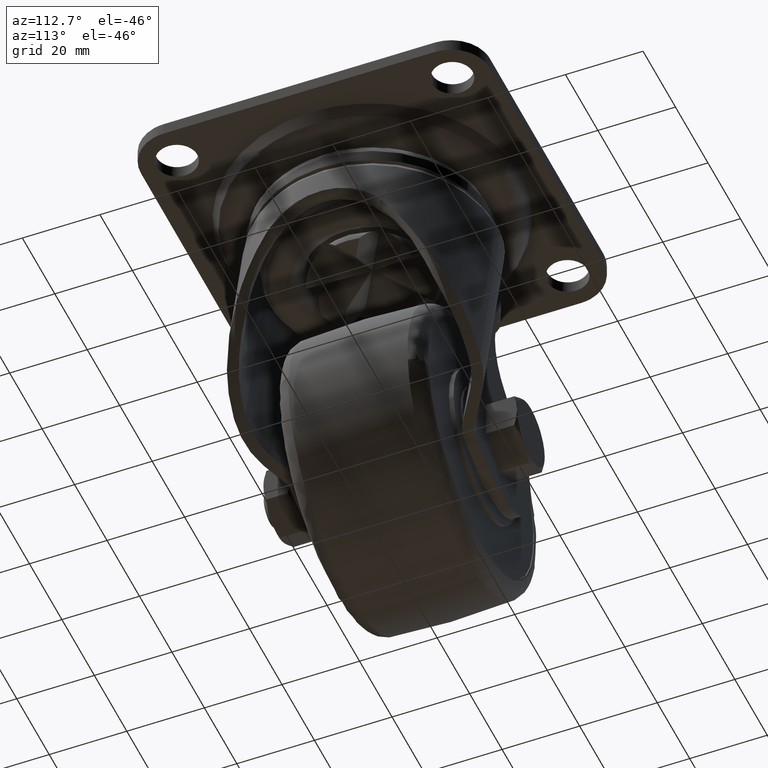
[diagram: clean part render]
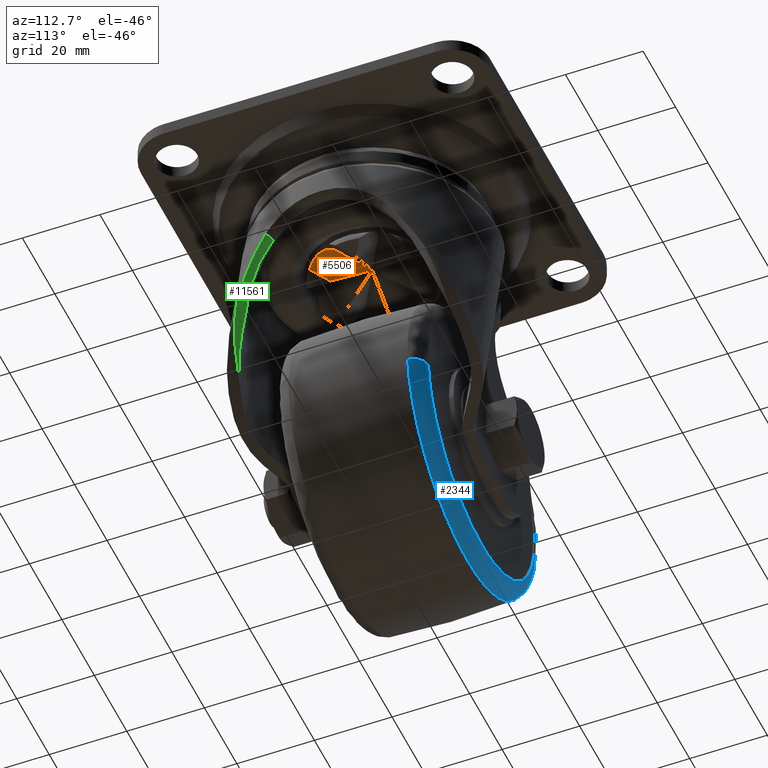
[diagram: same view with three faces highlighted in distinct colors, each labeled with its STEP entity id]
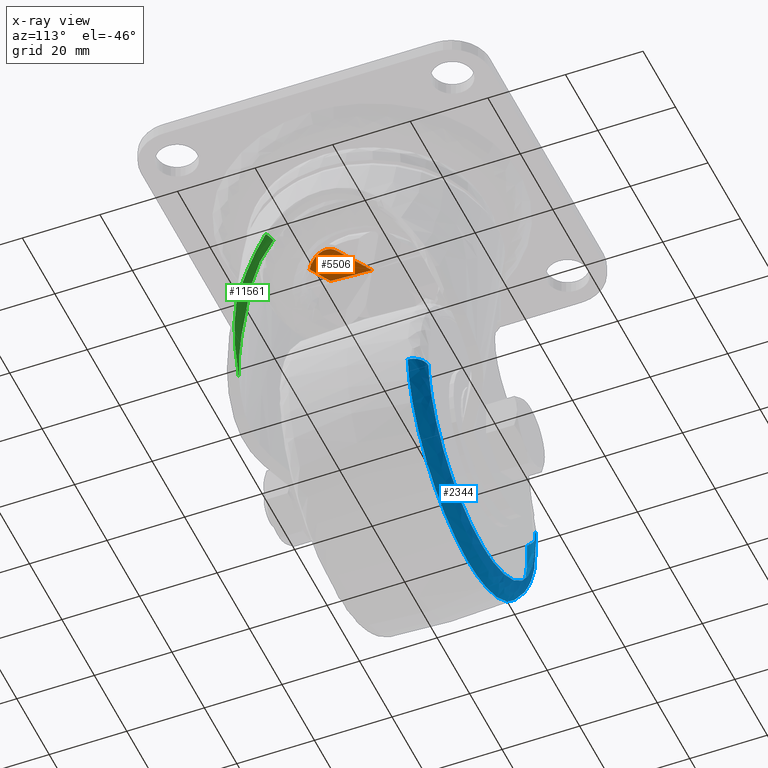
[diagram: x-ray of the same camera — body ghosted, the three highlighted faces saturated]
A machine part, auxiliary view with three faces highlighted in distinct colors.
The next image is the same camera in x-ray (body ghosted, the three faces saturated) — at least one of them is partly hidden behind the body in this view.
Their STEP definitions:

[orange] entity #5506 — the highlighted face is a freeform B-spline surface patch.
#5146=CARTESIAN_POINT('',(10.434329321615319,-11.797765534544180,-26.0));
#5147=VERTEX_POINT('',#5146);
#5148=CARTESIAN_POINT('',(4.999999999999890,-8.660254037844370,-26.0));
#5149=VERTEX_POINT('',#5148);
#5150=CARTESIAN_POINT('',(10.434329321615319,-11.797765534544180,-26.0));
#5151=CARTESIAN_POINT('',(4.999999999999890,-8.660254037844370,-26.0));
#5152=QUASI_UNIFORM_CURVE('',1,(#5150,#5151),.UNSPECIFIED.,.F.,.U.);
#5153=EDGE_CURVE('',#5147,#5149,#5152,.T.);
#5305=CARTESIAN_POINT('',(-2.881881E-013,-1.665335E-013,-21.0));
#5306=VERTEX_POINT('',#5305);
#5443=CARTESIAN_POINT('',(-0.582259353285898,0.604407941459812,-20.767697045089509));
#5444=CARTESIAN_POINT('',(-0.582259353285898,-9.532203138324929,-29.546259748465911));
#5445=CARTESIAN_POINT('',(12.239104027934181,-2.568056744051085,-17.104450364740920));
#5446=CARTESIAN_POINT('',(12.239104027934181,-12.704667823835830,-25.883013068117322));
#5447=B_SPLINE_SURFACE_WITH_KNOTS('',1,1,((#5443,#5445),(#5444,#5446)),.UNSPECIFIED.,.F.,.F.,.U.,(2,2),(2,2),(0.0,13.409476027046169),(0.0,13.706614001101441),.UNSPECIFIED.);
#5448=CARTESIAN_POINT('',(9.309773090682702,-5.375000000000000,-21.0));
#5449=VERTEX_POINT('',#5448);
#5450=CARTESIAN_POINT('',(9.309773090682702,-5.375000000000000,-21.0));
#5451=CARTESIAN_POINT('',(9.478319791243086,-5.472310482939736,-21.000000000000011));
#5452=CARTESIAN_POINT('',(9.640919957240936,-5.579259362001912,-21.011320363175258));
#5453=CARTESIAN_POINT('',(9.875794397473928,-5.754312095303161,-21.045483257099541));
#5454=CARTESIAN_POINT('',(9.952697596935483,-5.815245130296026,-21.059801213602260));
#5455=CARTESIAN_POINT('',(10.100776205457860,-5.939761732716232,-21.093596450229910));
#5456=CARTESIAN_POINT('',(10.172308353972850,-6.003594883921207,-21.113111506519520));
#5457=CARTESIAN_POINT('',(10.379704814886050,-6.199616950771348,-21.179173365657480));
#5458=CARTESIAN_POINT('',(10.508401778468190,-6.336307979722947,-21.233202787407951));
#5459=CARTESIAN_POINT('',(10.687722945730330,-6.549965319583010,-21.328574887800709));
#5460=CARTESIAN_POINT('',(10.745330110155001,-6.622825482990985,-21.362870058023489));
#5461=CARTESIAN_POINT('',(10.854509702963650,-6.769377195007980,-21.435197767193969));
#5462=CARTESIAN_POINT('',(10.906269688965841,-6.843270779231575,-21.473311495307200));
#5463=CARTESIAN_POINT('',(11.053490038412180,-7.066710889210013,-21.593206132049751));
#5464=CARTESIAN_POINT('',(11.140925489293860,-7.218009198373970,-21.680516585894619));
#5465=CARTESIAN_POINT('',(11.256978804930920,-7.448252858212232,-21.821886786556330));
#5466=CARTESIAN_POINT('',(11.293199309882469,-7.525697441412470,-21.870845510517359));
#5467=CARTESIAN_POINT('',(11.360370989448370,-7.681025335041265,-21.971777572533291));
#5468=CARTESIAN_POINT('',(11.391173042241350,-7.758536396086955,-22.023503094076741));
#5469=CARTESIAN_POINT('',(11.475659817098389,-7.990634646148619,-22.182262687375530));
#5470=CARTESIAN_POINT('',(11.521455099309261,-8.144788546597406,-22.292866240151071));
#5471=CARTESIAN_POINT('',(11.593407340490259,-8.452017809461998,-22.522958465987259));
#5472=CARTESIAN_POINT('',(11.619574148803681,-8.605263516667804,-22.642589737291772));
#5473=CARTESIAN_POINT('',(11.669292960256209,-9.062369612620232,-23.013595822885041));
#5474=CARTESIAN_POINT('',(11.663681075423510,-9.355828062019759,-23.270544237436521));
#5475=CARTESIAN_POINT('',(11.613915729681819,-9.710210245945063,-23.602330884235290));
#5476=CARTESIAN_POINT('',(11.601798236913099,-9.780456810885125,-23.669224940386421));
#5477=CARTESIAN_POINT('',(11.573280261949600,-9.919703542220091,-23.804075134598190));
#5478=CARTESIAN_POINT('',(11.556848778876910,-9.988814918433025,-23.872143083625449));
#5479=CARTESIAN_POINT('',(11.501365354309090,-10.193513493138621,-24.077158961722869));
#5480=CARTESIAN_POINT('',(11.456390517169140,-10.325680253792040,-24.214106152554610));
#5481=CARTESIAN_POINT('',(11.299022708191840,-10.710098879774080,-24.625706352831621));
#5482=CARTESIAN_POINT('',(11.164349102283101,-10.950356653987610,-24.901112491711590));
#5483=CARTESIAN_POINT('',(10.960705889557110,-11.231675558295640,-25.246563415770161));
#5484=CARTESIAN_POINT('',(10.918135811443760,-11.287056871665291,-25.315810079099819));
#5485=CARTESIAN_POINT('',(10.829776156583581,-11.395491790018109,-25.453897300480740));
#5486=CARTESIAN_POINT('',(10.784013348437529,-11.448523529734411,-25.522705538354959));
#5487=CARTESIAN_POINT('',(10.642066008637769,-11.604129024370909,-25.728437519578499));
#5488=CARTESIAN_POINT('',(10.541230278697959,-11.703218835194329,-25.864669677977730));
#5489=CARTESIAN_POINT('',(10.434329321615399,-11.797765534544251,-26.0));
#5490=B_SPLINE_CURVE_WITH_KNOTS('',3,(#5450,#5451,#5452,#5453,#5454,#5455,#5456,#5457,#5458,#5459,#5460,#5461,#5462,#5463,#5464,#5465,#5466,#5467,#5468,#5469,#5470,#5471,#5472,#5473,#5474,#5475,#5476,#5477,#5478,#5479,#5480,#5481,#5482,#5483,#5484,#5485,#5486,#5487,#5488,#5489),.UNSPECIFIED.,.F.,.U.,(4,2,2,2,2,2,2,2,2,2,2,2,2,2,2,2,2,2,2,4),(0.0,0.062499999999999,0.093749999999998,0.124999999999998,0.187499999999997,0.218749999999997,0.249999999999997,0.312499999999996,0.343749999999996,0.374999999999996,0.437499999999996,0.499999999999996,0.624999999999996,0.656249999999996,0.687499999999996,0.749999999999996,0.874999999999997,0.906249999999998,0.937499999999999,1.0),.UNSPECIFIED.);
#5491=EDGE_CURVE('',#5449,#5147,#5490,.T.);
#5492=ORIENTED_EDGE('',*,*,#5491,.T.);
#5493=ORIENTED_EDGE('',*,*,#5153,.T.);
#5494=CARTESIAN_POINT('',(-2.881881E-013,-1.665335E-013,-21.0));
#5495=CARTESIAN_POINT('',(4.999999999999890,-8.660254037844370,-26.0));
#5496=QUASI_UNIFORM_CURVE('',1,(#5494,#5495),.UNSPECIFIED.,.F.,.U.);
#5497=EDGE_CURVE('',#5306,#5149,#5496,.T.);
#5498=ORIENTED_EDGE('',*,*,#5497,.F.);
#5499=CARTESIAN_POINT('',(-2.881881E-013,-1.665335E-013,-21.0));
#5500=CARTESIAN_POINT('',(9.309773090682702,-5.375000000000000,-21.0));
#5501=QUASI_UNIFORM_CURVE('',1,(#5499,#5500),.UNSPECIFIED.,.F.,.U.);
#5502=EDGE_CURVE('',#5306,#5449,#5501,.T.);
#5503=ORIENTED_EDGE('',*,*,#5502,.T.);
#5504=EDGE_LOOP('',(#5492,#5493,#5498,#5503));
#5505=FACE_OUTER_BOUND('',#5504,.T.);
#5506=ADVANCED_FACE('',(#5505),#5447,.F.);

[blue] entity #2344 — the highlighted face is a freeform B-spline surface patch.
#2054=CARTESIAN_POINT('',(-22.0,15.306126688645850,-105.413446100786100));
#2055=VERTEX_POINT('',#2054);
#2069=CARTESIAN_POINT('',(14.770724452030590,15.306126676629290,-71.742890423072211));
#2070=VERTEX_POINT('',#2069);
#2071=CARTESIAN_POINT('',(-22.0,15.306126688645850,-105.413446100786100));
#2072=CARTESIAN_POINT('',(11.801244706569882,15.306126682647827,-105.413446093734580));
#2073=CARTESIAN_POINT('',(14.770724452030590,15.306126676629290,-71.742890423072211));
#2081=(BOUNDED_CURVE()B_SPLINE_CURVE(2,(#2071,#2072,#2073),.UNSPECIFIED.,.F.,.U.)B_SPLINE_CURVE_WITH_KNOTS((3,3),(0.0,0.234718454724046),.UNSPECIFIED.)CURVE()GEOMETRIC_REPRESENTATION_ITEM()RATIONAL_B_SPLINE_CURVE((1.0,0.725010225123819,0.966381850438441))REPRESENTATION_ITEM(''));
#2082=EDGE_CURVE('',#2055,#2070,#2081,.T.);
#2152=CARTESIAN_POINT('',(-58.770724452030890,15.306126676625340,-65.257109576927775));
#2153=VERTEX_POINT('',#2152);
#2167=CARTESIAN_POINT('',(-58.770724452030898,15.306126676625340,-65.257109576927775));
#2168=CARTESIAN_POINT('',(-58.913446269514765,15.306126676868050,-66.875414153216440));
#2169=CARTESIAN_POINT('',(-58.913446273033692,15.306126677133021,-68.500000013506764));
#2170=CARTESIAN_POINT('',(-58.913446352989894,15.306126683153529,-105.413446107243080));
#2171=CARTESIAN_POINT('',(-22.0,15.306126688645850,-105.413446100786100));
#2179=(BOUNDED_CURVE()B_SPLINE_CURVE(2,(#2167,#2168,#2169,#2170,#2171),.UNSPECIFIED.,.F.,.U.)B_SPLINE_CURVE_WITH_KNOTS((3,2,3),(0.734718454724062,0.750000000000000,1.0),.UNSPECIFIED.)CURVE()GEOMETRIC_REPRESENTATION_ITEM()RATIONAL_B_SPLINE_CURVE((0.966381850438474,0.982096556062748,1.0,0.707106781186548,1.0))REPRESENTATION_ITEM(''));
#2180=EDGE_CURVE('',#2153,#2055,#2179,.T.);
#2215=CARTESIAN_POINT('',(10.797875894423200,19.0,-71.392516240046859));
#2216=VERTEX_POINT('',#2215);
#2217=CARTESIAN_POINT('',(10.797875894423200,19.000000000000004,-71.392516240046859));
#2218=CARTESIAN_POINT('',(14.488290778601838,19.000000004315627,-71.717981981149720));
#2219=CARTESIAN_POINT('',(14.770724452030590,15.306126676629290,-71.742890423072211));
#2227=(BOUNDED_CURVE()B_SPLINE_CURVE(2,(#2217,#2218,#2219),.UNSPECIFIED.,.F.,.U.)B_SPLINE_CURVE_WITH_KNOTS((3,3),(-1.724331687502174,-0.276955220916635),.UNSPECIFIED.)CURVE()GEOMETRIC_REPRESENTATION_ITEM()RATIONAL_B_SPLINE_CURVE((0.892190726428418,0.654415034231074,0.891768274193680))REPRESENTATION_ITEM(''));
#2228=EDGE_CURVE('',#2216,#2070,#2227,.T.);
#2247=CARTESIAN_POINT('',(-54.797875894423200,19.0,-65.607483759953126));
#2248=VERTEX_POINT('',#2247);
#2262=CARTESIAN_POINT('',(-54.797875894423200,19.0,-65.607483759953126));
#2263=CARTESIAN_POINT('',(-58.488290778605503,19.000000004315623,-65.282018018849982));
#2264=CARTESIAN_POINT('',(-58.770724452030883,15.306126676625347,-65.257109576927775));
#2272=(BOUNDED_CURVE()B_SPLINE_CURVE(2,(#2262,#2263,#2264),.UNSPECIFIED.,.F.,.U.)B_SPLINE_CURVE_WITH_KNOTS((3,3),(-1.724331687502173,-0.276955220915580),.UNSPECIFIED.)CURVE()GEOMETRIC_REPRESENTATION_ITEM()RATIONAL_B_SPLINE_CURVE((0.892190726428418,0.654415034230901,0.891768274194026))REPRESENTATION_ITEM(''));
#2273=EDGE_CURVE('',#2248,#2153,#2272,.T.);
#2279=CARTESIAN_POINT('',(-54.451100699340820,18.991038623498962,-64.721523629275325));
#2280=CARTESIAN_POINT('',(-54.490971182983998,18.991038623498955,-65.173610001790664));
#2281=CARTESIAN_POINT('',(-57.400315882779374,18.991038623498955,-98.162301674018209));
#2282=CARTESIAN_POINT('',(-24.869007104380575,18.991038623498955,-101.031308778398800));
#2283=CARTESIAN_POINT('',(7.662301674018212,18.991038623498955,-103.900315882779350));
#2284=CARTESIAN_POINT('',(10.571646373809592,18.991038623498955,-70.911624210597196));
#2285=CARTESIAN_POINT('',(10.611516857448855,18.991038623498959,-70.459537838126181));
#2286=CARTESIAN_POINT('',(-58.651029416809237,19.274438382241804,-64.232500727873258));
#2287=CARTESIAN_POINT('',(-58.696060070234751,19.274438382241808,-64.743097613061011));
#2288=CARTESIAN_POINT('',(-61.981941777723485,19.274438382241811,-102.001294803439290));
#2289=CARTESIAN_POINT('',(-25.240323487142099,19.274438382241808,-105.241618290581400));
#2290=CARTESIAN_POINT('',(11.501294803439288,19.274438382241811,-108.481941777723490));
#2291=CARTESIAN_POINT('',(14.787176510923480,19.274438382241811,-71.223744587396453));
#2292=CARTESIAN_POINT('',(14.832207164344581,19.274438382241811,-70.713147702258752));
#2293=CARTESIAN_POINT('',(-58.691536835348835,15.038492718044775,-64.227784206076080));
#2294=CARTESIAN_POINT('',(-58.736617257513558,15.038492718044774,-64.738945412704794));
#2295=CARTESIAN_POINT('',(-62.026130584296865,15.038492718044772,-102.038321075056030));
#2296=CARTESIAN_POINT('',(-25.243904754620409,15.038492718044782,-105.282225829676460));
#2297=CARTESIAN_POINT('',(11.538321075056039,15.038492718044772,-108.526130584296840));
#2298=CARTESIAN_POINT('',(14.827834401834840,15.038492718044782,-71.226754921996957));
#2299=CARTESIAN_POINT('',(14.872914823995142,15.038492718044782,-70.715593715418336));
#2307=(BOUNDED_SURFACE()B_SPLINE_SURFACE(2,2,((#2279,#2286,#2293),(#2280,#2287,#2294),(#2281,#2288,#2295),(#2282,#2289,#2296),(#2283,#2290,#2297),(#2284,#2291,#2298),(#2285,#2292,#2299)),.UNSPECIFIED.,.F.,.F.,.U.)B_SPLINE_SURFACE_WITH_KNOTS((3,1,2,1,3),(3,3),(0.0,1.223586607578449,62.402916982856098,123.582247358133800,124.805833965590100),(0.0,6.899142439934799),.UNSPECIFIED.)GEOMETRIC_REPRESENTATION_ITEM()RATIONAL_B_SPLINE_SURFACE(((0.927874830766947,0.636871900471230,0.927404715225941),(0.922502407701222,0.633184393089253,0.922035014143282),(0.648508831365275,0.445121516619428,0.648180258943656),(0.917129984635498,0.629496885707276,0.916665313060623),(0.648508831365275,0.445121516619428,0.648180258943656),(0.922502407700686,0.633184393088885,0.922035014142746),(0.927874830765875,0.636871900470494,0.927404715224870)))REPRESENTATION_ITEM('')SURFACE());
#2308=ORIENTED_EDGE('',*,*,#2082,.F.);
#2309=ORIENTED_EDGE('',*,*,#2180,.F.);
#2310=ORIENTED_EDGE('',*,*,#2273,.F.);
#2311=CARTESIAN_POINT('',(-22.0,19.0,-101.425177497680810));
#2312=VERTEX_POINT('',#2311);
#2313=CARTESIAN_POINT('',(-54.797875894423200,18.999999999999996,-65.607483759953112));
#2314=CARTESIAN_POINT('',(-54.925177499624546,19.000000000000007,-67.050940564817239));
#2315=CARTESIAN_POINT('',(-54.925177499580890,19.0,-68.499999999832411));
#2316=CARTESIAN_POINT('',(-54.925177498589022,19.000000000000011,-101.425177497600700));
#2317=CARTESIAN_POINT('',(-22.0,19.0,-101.425177497680810));
#2325=(BOUNDED_CURVE()B_SPLINE_CURVE(2,(#2313,#2314,#2315,#2316,#2317),.UNSPECIFIED.,.F.,.U.)B_SPLINE_CURVE_WITH_KNOTS((3,2,3),(0.734718454855756,0.750000000000000,1.0),.UNSPECIFIED.)CURVE()GEOMETRIC_REPRESENTATION_ITEM()RATIONAL_B_SPLINE_CURVE((0.966381850709328,0.982096556217037,1.0,0.707106781186547,1.0))REPRESENTATION_ITEM(''));
#2326=EDGE_CURVE('',#2248,#2312,#2325,.T.);
#2327=ORIENTED_EDGE('',*,*,#2326,.T.);
#2328=CARTESIAN_POINT('',(-22.0,19.0,-101.425177497680810));
#2329=CARTESIAN_POINT('',(8.149229965881830,19.000000000000004,-101.425177497768290));
#2330=CARTESIAN_POINT('',(10.797875894423202,18.999999999999996,-71.392516240046859));
#2338=(BOUNDED_CURVE()B_SPLINE_CURVE(2,(#2328,#2329,#2330),.UNSPECIFIED.,.F.,.U.)B_SPLINE_CURVE_WITH_KNOTS((3,3),(0.0,0.234718454855756),.UNSPECIFIED.)CURVE()GEOMETRIC_REPRESENTATION_ITEM()RATIONAL_B_SPLINE_CURVE((1.0,0.725010224969510,0.966381850709328))REPRESENTATION_ITEM(''));
#2339=EDGE_CURVE('',#2312,#2216,#2338,.T.);
#2340=ORIENTED_EDGE('',*,*,#2339,.T.);
#2341=ORIENTED_EDGE('',*,*,#2228,.T.);
#2342=EDGE_LOOP('',(#2308,#2309,#2310,#2327,#2340,#2341));
#2343=FACE_OUTER_BOUND('',#2342,.T.);
#2344=ADVANCED_FACE('',(#2343),#2307,.T.);

[green] entity #11561 — the highlighted face is a freeform B-spline surface patch.
#9084=CARTESIAN_POINT('',(25.820157492246601,-24.150369751836251,-46.517935497094498));
#9085=VERTEX_POINT('',#9084);
#9115=CARTESIAN_POINT('',(30.167933977785751,-14.834970115155000,-31.474647562725099));
#9116=VERTEX_POINT('',#9115);
#9117=CARTESIAN_POINT('',(25.820157492246601,-24.150369751836251,-46.517935497094498));
#9118=CARTESIAN_POINT('',(26.087712350857199,-23.816589479148021,-45.885639921895063));
#9119=CARTESIAN_POINT('',(26.337378873548719,-23.479388839233359,-45.248439191217543));
#9120=CARTESIAN_POINT('',(26.691166144333469,-22.966379616914640,-44.288693866305671));
#9121=CARTESIAN_POINT('',(26.805624856894330,-22.794172220381800,-43.968116075576887));
#9122=CARTESIAN_POINT('',(27.028432867896601,-22.446965801641561,-43.326152647935359));
#9123=CARTESIAN_POINT('',(27.136807470314078,-22.271920665725851,-43.004684822808663));
#9124=CARTESIAN_POINT('',(27.453450775125820,-21.742683920383321,-42.041057138449773));
#9125=CARTESIAN_POINT('',(27.653420226428992,-21.384203349017159,-41.399341707303194));
#9126=CARTESIAN_POINT('',(28.035927996385361,-20.652679287693839,-40.120681710870969));
#9127=CARTESIAN_POINT('',(28.218464107978249,-20.279625233919528,-39.483743361629600));
#9128=CARTESIAN_POINT('',(28.569206702182608,-19.515889867506960,-38.217428431170937));
#9129=CARTESIAN_POINT('',(28.737412050934900,-19.125196464017851,-37.588059332077179));
#9130=CARTESIAN_POINT('',(29.060931782954480,-18.323658462004740,-36.338887045415312));
#9131=CARTESIAN_POINT('',(29.216250207763839,-17.912792936774849,-35.719098392789363));
#9132=CARTESIAN_POINT('',(29.513753204903679,-17.069380716269759,-34.490007543831553));
#9133=CARTESIAN_POINT('',(29.655965013194741,-16.636773065045809,-33.880751767489322));
#9134=CARTESIAN_POINT('',(29.857709265856091,-15.971992448228839,-32.974025965667032));
#9135=CARTESIAN_POINT('',(29.923011317252481,-15.747773085070611,-32.672960239739773));
#9136=CARTESIAN_POINT('',(30.049103492490989,-15.294622855789090,-32.072669942214972));
#9137=CARTESIAN_POINT('',(30.109902496646900,-15.065675638561091,-31.773458235422620));
#9138=CARTESIAN_POINT('',(30.167934022560900,-14.834970054231000,-31.474647611026199));
#9139=B_SPLINE_CURVE_WITH_KNOTS('',3,(#9117,#9118,#9119,#9120,#9121,#9122,#9123,#9124,#9125,#9126,#9127,#9128,#9129,#9130,#9131,#9132,#9133,#9134,#9135,#9136,#9137,#9138),.UNSPECIFIED.,.F.,.U.,(4,2,2,2,2,2,2,2,2,2,4),(0.0,0.124999999999999,0.187499999999999,0.249999999999998,0.374999999999999,0.499999999999999,0.625000000000000,0.750000000000000,0.875000000000000,0.937500000000000,1.0),.UNSPECIFIED.);
#9140=EDGE_CURVE('',#9085,#9116,#9139,.T.);
#9628=CARTESIAN_POINT('',(16.365325057381249,-27.521977061377449,-62.353091716818113));
#9629=VERTEX_POINT('',#9628);
#9645=CARTESIAN_POINT('',(16.365325057381199,-27.521977061377449,-62.353091716818113));
#9646=CARTESIAN_POINT('',(17.352214629291030,-27.414364036552062,-61.123253471997032));
#9647=CARTESIAN_POINT('',(18.288114332023540,-27.271870828188231,-59.868167208264332));
#9648=CARTESIAN_POINT('',(20.060661035410021,-26.906060820953059,-57.311313252929779));
#9649=CARTESIAN_POINT('',(20.897302396676061,-26.682789449767949,-56.009533374805841));
#9650=CARTESIAN_POINT('',(22.472842425328409,-26.141650696413780,-53.362861887478253));
#9651=CARTESIAN_POINT('',(23.211737058369689,-25.823858281181248,-52.017953465390391));
#9652=CARTESIAN_POINT('',(24.074547730163459,-25.356071128000139,-50.312226755285799));
#9653=CARTESIAN_POINT('',(24.244067048889089,-25.258971767654021,-49.969853113635132));
#9654=CARTESIAN_POINT('',(24.577017697664971,-25.057335788692829,-49.282715116702271));
#9655=CARTESIAN_POINT('',(24.740559102548879,-24.952719256028828,-48.937706010163112));
#9656=CARTESIAN_POINT('',(25.220699851691052,-24.628075358338570,-47.902136942762837));
#9657=CARTESIAN_POINT('',(25.527128171957049,-24.397112172601439,-47.210433265907007));
#9658=CARTESIAN_POINT('',(25.820157492246601,-24.150369751836251,-46.517935497094498));
#9659=B_SPLINE_CURVE_WITH_KNOTS('',3,(#9645,#9646,#9647,#9648,#9649,#9650,#9651,#9652,#9653,#9654,#9655,#9656,#9657,#9658),.UNSPECIFIED.,.F.,.U.,(4,2,2,2,2,2,4),(0.0,0.250000000000000,0.499999999999999,0.749999999999999,0.812499999999999,0.874999999999999,1.0),.UNSPECIFIED.);
#9660=EDGE_CURVE('',#9629,#9085,#9659,.T.);
#10578=CARTESIAN_POINT('',(28.263598349204049,-13.670952122306820,-32.333734096313798));
#10579=VERTEX_POINT('',#10578);
#10611=CARTESIAN_POINT('',(22.929484430869401,-23.044724296834001,-48.689486573704087));
#10612=VERTEX_POINT('',#10611);
#10613=CARTESIAN_POINT('',(28.263598349203999,-13.670952122306820,-32.333734096313798));
#10614=CARTESIAN_POINT('',(28.212213010255709,-13.965065783735501,-32.626002955903587));
#10615=CARTESIAN_POINT('',(28.157420502239098,-14.252456089291989,-32.924752966486011));
#10616=CARTESIAN_POINT('',(28.041449636390919,-14.810865713826040,-33.530159311878592));
#10617=CARTESIAN_POINT('',(27.980202146200739,-15.082326543547151,-33.837233733752342));
#10618=CARTESIAN_POINT('',(27.786284893422749,-15.875139413459561,-34.770340193743429));
#10619=CARTESIAN_POINT('',(27.643439455254189,-16.374986778478199,-35.408211185580562));
#10620=CARTESIAN_POINT('',(27.328583191227171,-17.324203025315260,-36.710326102682423));
#10621=CARTESIAN_POINT('',(27.156574202794189,-17.773547320755700,-37.374587178819660));
#10622=CARTESIAN_POINT('',(26.781370501691441,-18.626800544506381,-38.725523248191962));
#10623=CARTESIAN_POINT('',(26.578177493366361,-19.030694691905090,-39.412208713187482));
#10624=CARTESIAN_POINT('',(26.138539046489068,-19.796870793983022,-40.804848634088827));
#10625=CARTESIAN_POINT('',(25.902095280070220,-20.159143379374800,-41.510809886628543));
#10626=CARTESIAN_POINT('',(25.520867814856508,-20.673556274625440,-42.582268613005439));
#10627=CARTESIAN_POINT('',(25.389804009084209,-20.839587454329330,-42.940265832154417));
#10628=CARTESIAN_POINT('',(25.119911461618880,-21.160953262349150,-43.656817679925346));
#10629=CARTESIAN_POINT('',(24.981033257619501,-21.316354502262151,-44.015511770192063));
#10630=CARTESIAN_POINT('',(24.266739874618331,-22.068273094377009,-45.810452310173289));
#10631=CARTESIAN_POINT('',(23.631670068831500,-22.589961052238149,-47.250960939587067));
#10632=CARTESIAN_POINT('',(22.929484430869401,-23.044724296834051,-48.689486573704087));
#10633=B_SPLINE_CURVE_WITH_KNOTS('',3,(#10613,#10614,#10615,#10616,#10617,#10618,#10619,#10620,#10621,#10622,#10623,#10624,#10625,#10626,#10627,#10628,#10629,#10630,#10631,#10632),.UNSPECIFIED.,.F.,.U.,(4,2,2,2,2,2,2,2,2,4),(0.0,0.062500000000000,0.125000000000000,0.250000000000000,0.375000000000001,0.500000000000001,0.625000000000002,0.687500000000001,0.750000000000001,1.0),.UNSPECIFIED.);
#10634=EDGE_CURVE('',#10579,#10612,#10633,.T.);
#11396=CARTESIAN_POINT('',(30.167933977785740,-14.834970115154981,-31.474647562725082));
#11397=CARTESIAN_POINT('',(29.745494031858005,-13.792452722929060,-32.454472525392923));
#11398=CARTESIAN_POINT('',(28.263598268403459,-13.670952618156139,-32.333734589053002));
#11406=(BOUNDED_CURVE()B_SPLINE_CURVE(2,(#11396,#11397,#11398),.UNSPECIFIED.,.F.,.U.)CURVE()GEOMETRIC_REPRESENTATION_ITEM()QUASI_UNIFORM_CURVE()RATIONAL_B_SPLINE_CURVE((1.0,0.801581961414704,1.0))REPRESENTATION_ITEM(''));
#11407=EDGE_CURVE('',#9116,#10579,#11406,.T.);
#11418=CARTESIAN_POINT('',(14.555413454870738,-25.552901851195312,-61.538999525532979));
#11419=CARTESIAN_POINT('',(14.585946327002375,-25.549683227190613,-61.502363598098412));
#11420=CARTESIAN_POINT('',(14.616479328319292,-25.546464589567847,-61.465727515656432));
#11421=CARTESIAN_POINT('',(16.567123148623740,-25.340837388903800,-59.125179756400030));
#11422=CARTESIAN_POINT('',(18.291447182764653,-25.005828692701694,-56.726487491507257));
#11423=CARTESIAN_POINT('',(20.595488586241753,-24.234713812670527,-53.012213508942494));
#11424=CARTESIAN_POINT('',(21.316305342178129,-23.932653968707690,-51.754709070651998));
#11425=CARTESIAN_POINT('',(22.663906353377410,-23.221626977366427,-49.205663915662122));
#11426=CARTESIAN_POINT('',(23.291711036394013,-22.811077432449277,-47.910785593192081));
#11427=CARTESIAN_POINT('',(24.434135775677436,-21.878519470982312,-45.338900540116306));
#11428=CARTESIAN_POINT('',(24.951618323514513,-21.355488420383974,-44.056937094265109));
#11429=CARTESIAN_POINT('',(25.651427574500335,-20.471558416126165,-42.149155147409225));
#11430=CARTESIAN_POINT('',(25.871639755017711,-20.160494375017404,-41.516461618109751));
#11431=CARTESIAN_POINT('',(26.283400365247644,-19.509270438604393,-40.270857094522462));
#11432=CARTESIAN_POINT('',(26.475533286287451,-19.168410447730107,-39.656383142236912));
#11433=CARTESIAN_POINT('',(27.013194867579408,-18.097375337270570,-37.841123922352580));
#11434=CARTESIAN_POINT('',(27.319989671555614,-17.319066387951292,-36.668241669478938));
#11435=CARTESIAN_POINT('',(27.843246931607339,-15.613338038600615,-34.418966791173709));
#11436=CARTESIAN_POINT('',(28.059835391411760,-14.685106100137153,-33.341304652178856));
#11437=CARTESIAN_POINT('',(28.251405126764084,-13.587978936426873,-32.251299024079977));
#11438=CARTESIAN_POINT('',(28.265516430555483,-13.507162962669732,-32.171007632936529));
#11439=CARTESIAN_POINT('',(28.279627645833468,-13.426347495832136,-32.090716745422135));
#11440=CARTESIAN_POINT('',(14.566016285871973,-25.553636321939219,-61.547556112681455));
#11441=CARTESIAN_POINT('',(14.596556265865955,-25.550421564150167,-61.510907502479483));
#11442=CARTESIAN_POINT('',(14.627096310644085,-25.547206799541701,-61.474258814535240));
#11443=CARTESIAN_POINT('',(16.578056576155230,-25.341841088401534,-59.133065981262220));
#11444=CARTESIAN_POINT('',(18.302652570203019,-25.007040173678515,-56.733730430930052));
#11445=CARTESIAN_POINT('',(20.607064121987630,-24.236157953102349,-53.018470481422924));
#11446=CARTESIAN_POINT('',(21.327998050280708,-23.934162318471092,-51.760633107073723));
#11447=CARTESIAN_POINT('',(22.675822792162645,-23.223234324435595,-49.210916417088441));
#11448=CARTESIAN_POINT('',(23.303734073711052,-22.812719276758713,-47.915699274719124));
#11449=CARTESIAN_POINT('',(24.446360059818737,-21.880196952988584,-45.343145637728881));
#11450=CARTESIAN_POINT('',(24.963937546444907,-21.357167199436770,-44.060851778166075));
#11451=CARTESIAN_POINT('',(25.663882926355548,-20.473213052651470,-42.152583042793886));
#11452=CARTESIAN_POINT('',(25.884139361757111,-20.162136587668456,-41.519729011606479));
#11453=CARTESIAN_POINT('',(26.295985864596599,-19.510879312767191,-40.273810627293280));
#11454=CARTESIAN_POINT('',(26.488160512402921,-19.169998401310110,-39.659182995471298));
#11455=CARTESIAN_POINT('',(27.025944227311847,-18.098888065344081,-37.843473882762581));
#11456=CARTESIAN_POINT('',(27.332816359546232,-17.320512334223562,-36.670306509302563));
#11457=CARTESIAN_POINT('',(27.856223225698372,-15.614619868662480,-34.420500520500973));
#11458=CARTESIAN_POINT('',(28.072883877022409,-14.686290695487893,-33.342592654128566));
#11459=CARTESIAN_POINT('',(28.264530097380458,-13.589044181572049,-32.252348774069269));
#11460=CARTESIAN_POINT('',(28.278647357016531,-13.508217573602426,-32.172038001998224));
#11461=CARTESIAN_POINT('',(28.292764572265110,-13.427391219767960,-32.091727482440454));
#11462=CARTESIAN_POINT('',(16.049188934292765,-25.656377459499019,-62.744490782391303));
#11463=CARTESIAN_POINT('',(16.080502659798523,-25.653688178853333,-62.705890457561246));
#11464=CARTESIAN_POINT('',(16.111807213197551,-25.650999685925122,-62.667301439156546));
#11465=CARTESIAN_POINT('',(18.092644242603683,-25.480881739261022,-60.225530249830101));
#11466=CARTESIAN_POINT('',(19.842796942359819,-25.173554327576973,-57.729249100069623));
#11467=CARTESIAN_POINT('',(22.183395438889317,-24.432817860568662,-53.870531404251125));
#11468=CARTESIAN_POINT('',(22.916026132554240,-24.139016639741442,-52.565197465952991));
#11469=CARTESIAN_POINT('',(24.287008656062717,-23.440558889509887,-49.921091344408978));
#11470=CARTESIAN_POINT('',(24.926408003795462,-23.034308704447579,-48.578868048495906));
#11471=CARTESIAN_POINT('',(26.091908132640537,-22.106007908519501,-45.914591140352783));
#11472=CARTESIAN_POINT('',(26.620915549268041,-21.582968776189706,-44.587390274020755));
#11473=CARTESIAN_POINT('',(27.338412230367723,-20.695666611678998,-42.613438050300346));
#11474=CARTESIAN_POINT('',(27.564581799719516,-20.382915040025484,-41.958996166798542));
#11475=CARTESIAN_POINT('',(27.988340323544584,-19.727222366612104,-40.670968039627155));
#11476=CARTESIAN_POINT('',(28.186528106894730,-19.383578872362371,-40.035764515363311));
#11477=CARTESIAN_POINT('',(28.742616522030993,-18.302573460355621,-38.159890707937194));
#11478=CARTESIAN_POINT('',(29.062049636722161,-17.515447956955022,-36.948678427109442));
#11479=CARTESIAN_POINT('',(29.611731533782969,-15.788033272162410,-34.627992317269481));
#11480=CARTESIAN_POINT('',(29.842131714330353,-14.846910312576686,-33.517233201082696));
#11481=CARTESIAN_POINT('',(30.049325126375063,-13.733901209853096,-32.395098698419176));
#11482=CARTESIAN_POINT('',(30.064634967893536,-13.651659246640309,-32.312182445297772));
#11483=CARTESIAN_POINT('',(30.079951276919243,-13.569382541036951,-32.229231164937978));
#11484=CARTESIAN_POINT('',(16.130093207001483,-27.560783536414942,-62.644827906916021));
#11485=CARTESIAN_POINT('',(16.161581383178465,-27.557469864429514,-62.605856060021523));
#11486=CARTESIAN_POINT('',(16.193069626375948,-27.554156185391172,-62.566884130178074));
#11487=CARTESIAN_POINT('',(18.204603204424931,-27.342471569938454,-60.077277295337716));
#11488=CARTESIAN_POINT('',(19.982679022804444,-26.997253348696965,-57.524458317517997));
#11489=CARTESIAN_POINT('',(22.358592840739494,-26.200396151882796,-53.564370130213327));
#11490=CARTESIAN_POINT('',(23.101895553495726,-25.887990123986246,-52.222469630257571));
#11491=CARTESIAN_POINT('',(24.491535536758850,-25.151423688788700,-49.498714797691044));
#11492=CARTESIAN_POINT('',(25.138924519863863,-24.725624269146920,-48.113270315371253));
#11493=CARTESIAN_POINT('',(26.316986825329387,-23.756313086141255,-45.356265546109213));
#11494=CARTESIAN_POINT('',(26.850611445075394,-23.211763230275341,-43.979424455968093));
#11495=CARTESIAN_POINT('',(27.572249473694303,-22.288714143176684,-41.925002190515009));
#11496=CARTESIAN_POINT('',(27.799330427704277,-21.963464436037206,-41.242751673283664));
#11497=CARTESIAN_POINT('',(28.223934173862204,-21.281402169205940,-39.897478105626710));
#11498=CARTESIAN_POINT('',(28.422059641813181,-20.923859922520620,-39.232773031741608));
#11499=CARTESIAN_POINT('',(28.976489983361756,-19.798220083545118,-37.265538538052233));
#11500=CARTESIAN_POINT('',(29.292852166927304,-18.977530091126546,-35.989597353480384));
#11501=CARTESIAN_POINT('',(29.832425639490683,-17.169085335794357,-33.530733284087084));
#11502=CARTESIAN_POINT('',(30.055767344766874,-16.180504281036949,-32.346351722852042));
#11503=CARTESIAN_POINT('',(30.253308688999230,-15.003454102739559,-31.140643526770951));
#11504=CARTESIAN_POINT('',(30.267860200763632,-14.916748914094871,-31.051827299120497));
#11505=CARTESIAN_POINT('',(30.282411666621037,-14.830043998987048,-30.963011351666804));
#11506=CARTESIAN_POINT('',(16.130673494487965,-27.574442926439808,-62.644113072982421));
#11507=CARTESIAN_POINT('',(16.162163008344624,-27.571126805400318,-62.605138454703372));
#11508=CARTESIAN_POINT('',(16.193652655881575,-27.567810670283087,-62.566163670967924));
#11509=CARTESIAN_POINT('',(18.205414095642308,-27.355954607111133,-60.076203535660134));
#11510=CARTESIAN_POINT('',(19.983700125708150,-27.010565878507823,-57.522963397925423));
#11511=CARTESIAN_POINT('',(22.359883654062138,-26.213419253727594,-53.562114405829149));
#11512=CARTESIAN_POINT('',(23.103268669136888,-25.900910715415442,-52.219937718609820));
#11513=CARTESIAN_POINT('',(24.493053263452808,-25.164119453603426,-49.495580480296368));
#11514=CARTESIAN_POINT('',(25.140504377657056,-24.738197588741386,-48.109809039886521));
#11515=CARTESIAN_POINT('',(26.318664430186637,-23.768613495162118,-45.352104113866751));
#11516=CARTESIAN_POINT('',(26.852324858847226,-23.223913202913430,-43.974889342261278));
#11517=CARTESIAN_POINT('',(27.573994569953197,-22.300602845112714,-41.919864485219215));
#11518=CARTESIAN_POINT('',(27.801082363669803,-21.975260123006493,-41.237406319408414));
#11519=CARTESIAN_POINT('',(28.225692038880251,-21.292998559786778,-39.891706771209648));
#11520=CARTESIAN_POINT('',(28.423816625673698,-20.935349886897136,-39.226782992754607));
#11521=CARTESIAN_POINT('',(28.978232690234066,-19.809364886525273,-37.258874277541914));
#11522=CARTESIAN_POINT('',(29.294569853451105,-18.988411249042581,-35.982459647347063));
#11523=CARTESIAN_POINT('',(29.834062383825909,-17.179327698790637,-33.522595629023400));
#11524=CARTESIAN_POINT('',(30.057348182879075,-16.190372467197051,-32.337687559192119));
#11525=CARTESIAN_POINT('',(30.254813726689886,-15.012821156287908,-31.131387867686030));
#11526=CARTESIAN_POINT('',(30.269359322025910,-14.926081036845540,-31.042530101272657));
#11527=CARTESIAN_POINT('',(30.283904825817931,-14.839341463310081,-30.953672894093810));
#11535=(BOUNDED_SURFACE()B_SPLINE_SURFACE(3,2,((#11418,#11440,#11462,#11484,#11506),(#11419,#11441,#11463,#11485,#11507),(#11420,#11442,#11464,#11486,#11508),(#11421,#11443,#11465,#11487,#11509),(#11422,#11444,#11466,#11488,#11510),(#11423,#11445,#11467,#11489,#11511),(#11424,#11446,#11468,#11490,#11512),(#11425,#11447,#11469,#11491,#11513),(#11426,#11448,#11470,#11492,#11514),(#11427,#11449,#11471,#11493,#11515),(#11428,#11450,#11472,#11494,#11516),(#11429,#11451,#11473,#11495,#11517),(#11430,#11452,#11474,#11496,#11518),(#11431,#11453,#11475,#11497,#11519),(#11432,#11454,#11476,#11498,#11520),(#11433,#11455,#11477,#11499,#11521),(#11434,#11456,#11478,#11500,#11522),(#11435,#11457,#11479,#11501,#11523),(#11436,#11458,#11480,#11502,#11524),(#11437,#11459,#11481,#11503,#11525),(#11438,#11460,#11482,#11504,#11526),(#11439,#11461,#11483,#11505,#11527)),.UNSPECIFIED.,.F.,.F.,.U.)B_SPLINE_SURFACE_WITH_KNOTS((4,2,2,2,2,2,2,2,2,2,4),(3,1,1,3),(0.0,0.150760994067441,9.630256653129864,14.370004482661070,19.109752312192288,23.849500141723489,26.219374056489091,28.589247971254700,33.328995800785911,38.068743630317130,38.445661884082668),(0.0,0.031883368278093,3.219925467199560,3.251916505062217),.UNSPECIFIED.)GEOMETRIC_REPRESENTATION_ITEM()RATIONAL_B_SPLINE_SURFACE(((1.005482194455680,1.002741097227840,0.725915615835514,1.002750353865884,1.005500707731768),(1.005480067355843,1.002740033677922,0.726021960995938,1.002749286724376,1.005498573448751),(1.005477940256006,1.002738970128003,0.726128306156362,1.002748219582867,1.005496439165735),(1.005342066136289,1.002671033068145,0.732921384134091,1.002680053100730,1.005360106201460),(1.005228397829539,1.002614198914769,0.738604274098408,1.002623027019400,1.005246054038799),(1.005092746400064,1.002546373200032,0.745386218593331,1.002554972258394,1.005109944516787),(1.005053342311118,1.002526671155559,0.747356240915501,1.002535203680457,1.005070407360913),(1.004987269563439,1.002493634781720,0.750659572912205,1.002502055743353,1.005004111486705),(1.004960605502813,1.002480302751406,0.751992652702654,1.002488678691003,1.004977357382006),(1.004922000306515,1.002461000153258,0.753922734084901,1.002469310908313,1.004938621816627),(1.004909895372439,1.002454947686219,0.754527924839918,1.002463238002198,1.004926476004397),(1.004903160386045,1.002451580193023,0.754864643030581,1.002459859137035,1.004919718274070),(1.004902836354665,1.002451418177333,0.754880843101912,1.002459696574221,1.004919393148442),(1.004906041582370,1.002453020791185,0.754720596531159,1.002461304600073,1.004922609200146),(1.004909563572444,1.002454781786222,0.754544513306061,1.002463071541960,1.004926143083919),(1.004925827326698,1.002462913663349,0.753731400764194,1.002471230880295,1.004942461760591),(1.004944285643094,1.002472142821547,0.752808570258450,1.002480491205201,1.004960982410403),(1.004995886979662,1.002497943489831,0.750228741930659,1.002506379001897,1.005012758003794),(1.005029089876850,1.002514544938425,0.748568750534525,1.002523036513296,1.005046073026593),(1.005071880794052,1.002535940397026,0.746429402453403,1.002544504223992,1.005089008447984),(1.005075032978995,1.002537516489498,0.746271807775579,1.002546085638901,1.005092171277802),(1.005078185163939,1.002539092581970,0.746114213097754,1.002547667053810,1.005095334107619)))REPRESENTATION_ITEM('')SURFACE());
#11536=CARTESIAN_POINT('',(22.929484430869401,-23.044724296834051,-48.689486573704087));
#11537=CARTESIAN_POINT('',(22.793923806775219,-23.242458186704422,-49.314966474932653));
#11538=CARTESIAN_POINT('',(22.640836011800548,-23.444139896666240,-49.934294117851969));
#11539=CARTESIAN_POINT('',(22.301015672478339,-23.850864528849058,-51.162531819350882));
#11540=CARTESIAN_POINT('',(22.114129465608890,-24.056024620833689,-51.771393594627398));
#11541=CARTESIAN_POINT('',(21.500035595321009,-24.672591057084158,-53.582639304468067));
#11542=CARTESIAN_POINT('',(21.024280268126262,-25.080130198966089,-54.754419490897291));
#11543=CARTESIAN_POINT('',(20.205754959662599,-25.668323929805791,-56.461375924010177));
#11544=CARTESIAN_POINT('',(19.915446267226798,-25.860502923719459,-57.021928310204437));
#11545=CARTESIAN_POINT('',(19.299516897266809,-26.233630703017241,-58.127087164663983));
#11546=CARTESIAN_POINT('',(18.973890737065471,-26.414578416122421,-58.671690937719262));
#11547=CARTESIAN_POINT('',(18.287533645821760,-26.761445195102571,-59.746308897374242));
#11548=CARTESIAN_POINT('',(17.926796946599879,-26.927361873795711,-60.276320659842703));
#11549=CARTESIAN_POINT('',(17.171190198541410,-27.240079896843639,-61.323629634772672));
#11550=CARTESIAN_POINT('',(16.776315285896601,-27.386877104566739,-61.840925497148923));
#11551=CARTESIAN_POINT('',(16.365325057381199,-27.521977061377449,-62.353091716818113));
#11552=B_SPLINE_CURVE_WITH_KNOTS('',3,(#11536,#11537,#11538,#11539,#11540,#11541,#11542,#11543,#11544,#11545,#11546,#11547,#11548,#11549,#11550,#11551),.UNSPECIFIED.,.F.,.U.,(4,2,2,2,2,2,2,4),(0.0,0.125000000000000,0.250000000000000,0.500000000000000,0.625000000000000,0.750000000000000,0.875000000000000,1.0),.UNSPECIFIED.);
#11553=EDGE_CURVE('',#10612,#9629,#11552,.T.);
#11554=ORIENTED_EDGE('',*,*,#11553,.F.);
#11555=ORIENTED_EDGE('',*,*,#10634,.F.);
#11556=ORIENTED_EDGE('',*,*,#11407,.F.);
#11557=ORIENTED_EDGE('',*,*,#9140,.F.);
#11558=ORIENTED_EDGE('',*,*,#9660,.F.);
#11559=EDGE_LOOP('',(#11554,#11555,#11556,#11557,#11558));
#11560=FACE_OUTER_BOUND('',#11559,.T.);
#11561=ADVANCED_FACE('',(#11560),#11535,.T.);